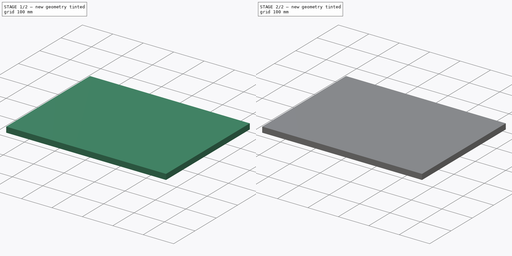
[diagram: build sequence overview — one tinted view per stage of 2, left to right]
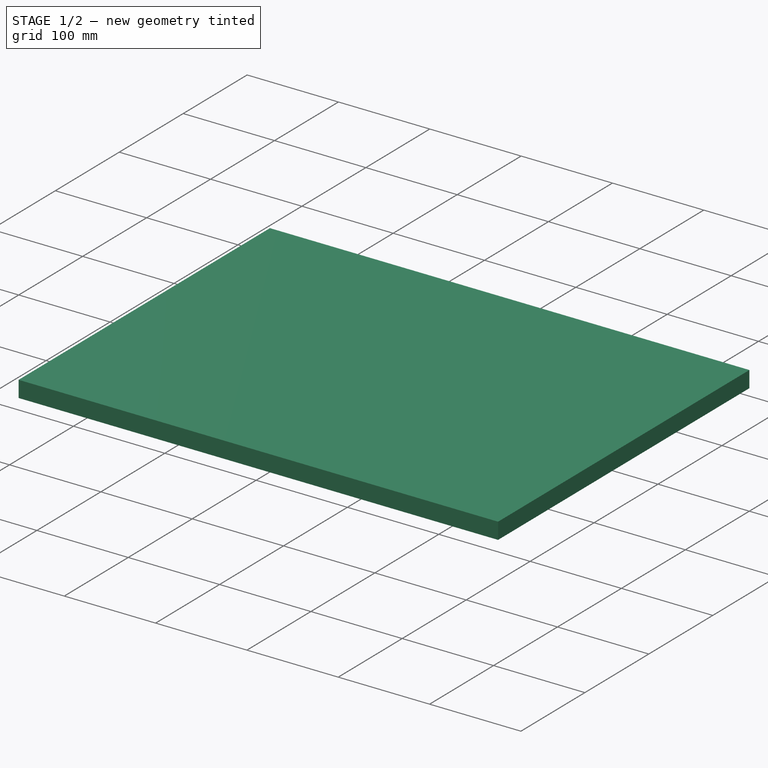
[diagram: stage 1 of 2 — iso view after this stage's code; geometry added in this stage tinted green]
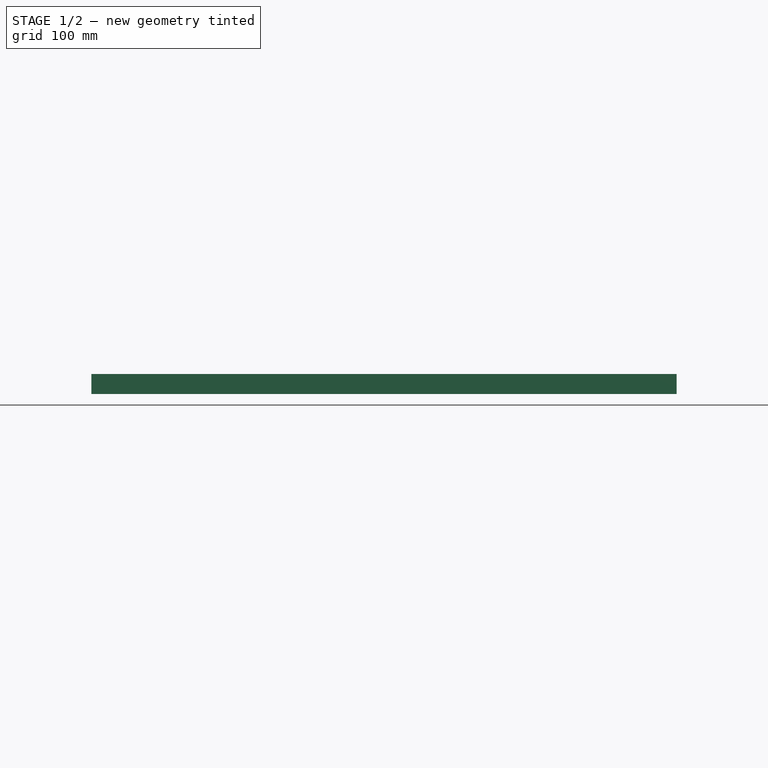
[diagram: stage 1 of 2 — front view after this stage's code; geometry added in this stage tinted green]
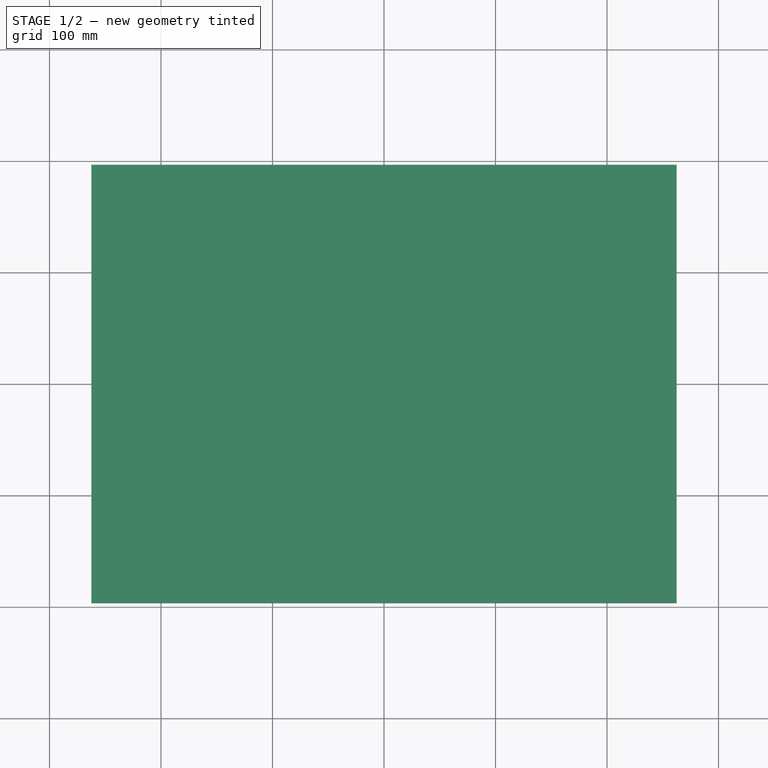
[diagram: stage 1 of 2 — top view after this stage's code; geometry added in this stage tinted green]
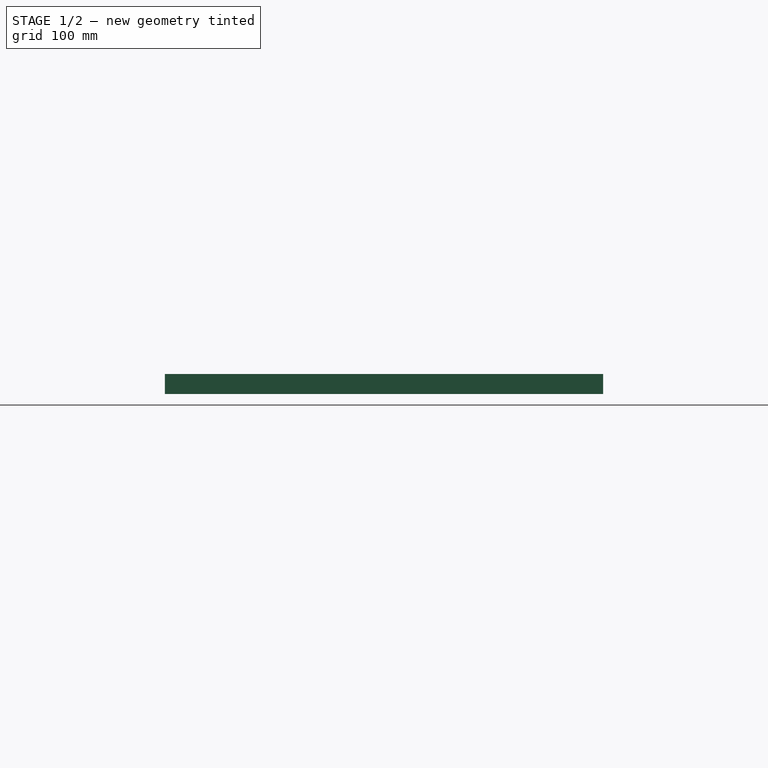
[diagram: stage 1 of 2 — right view after this stage's code; geometry added in this stage tinted green]
FCSTD DOCUMENT  (FreeCAD 1.0R39109 (Git))
Label: 71_drawer_box_top_bottom
License: All rights reserved
LicenseURL: http://en.wikipedia.org/wiki/All_rights_reserved
objects: Sketcher::SketchObject×2, Spreadsheet::Sheet×1, PartDesign::Pad×1, PartDesign::Pocket×1, PartDesign::Body×1
note: 11 computed .brp shape members not serialized (recipe doc carries the construction recipe); baked Part::Feature solids carry a one-line shape summary decoded from their .brp

FEATURE [Spreadsheet::Sheet] Spreadsheet
  cells = A2='length; B2(length)=525; A3='width; B3(width)=393; A4='height; B4(height)=18
FEATURE [Sketcher::SketchObject] Sketch
  ArcFitTolerance = 0
  AttachmentSupport = -> [XY_Plane]
  FullyConstrained = true
  MakeInternals = false
  MapMode = 5
  expr: Constraints[11] = Spreadsheet.length
  expr: Constraints[12] = Spreadsheet.width
  sketch-geometry (5):
    g0: LineSegment StartX=-262.5 StartY=196.5 StartZ=0 EndX=262.5 EndY=196.5 EndZ=0
    g1: LineSegment StartX=262.5 StartY=196.5 StartZ=0 EndX=262.5 EndY=-196.5 EndZ=0
    g2: LineSegment StartX=262.5 StartY=-196.5 StartZ=0 EndX=-262.5 EndY=-196.5 EndZ=0
    g3: LineSegment StartX=-262.5 StartY=-196.5 StartZ=0 EndX=-262.5 EndY=196.5 EndZ=0
    g4: LineSegment [constr] StartX=-262.5 StartY=196.5 StartZ=0 EndX=262.5 EndY=-196.5 EndZ=0
  constraints (13):
    c: Coincident(g0,g1)
    c: Coincident(g1,g2)
    c: Coincident(g2,g3)
    c: Coincident(g3,g0)
    c: Horizontal(g0)
    c: Horizontal(g2)
    c: Vertical(g1)
    c: Vertical(g3)
    c: Coincident(g4,g1)
    c: Coincident(g0,g4)
    c: Symmetric(g0,g1,g-1)
    c: Distance(g0,g0) = 525
    c: Distance(g0,g2) = 393
FEATURE [PartDesign::Pad] Pad
  Direction = (0,0,1)
  Length = 18
  Length2 = 10
  Profile = -> Sketch
  ReferenceAxis = -> Sketch [N_Axis]
  Suppressed = false
  Type = 0
  expr: Length = Spreadsheet.height
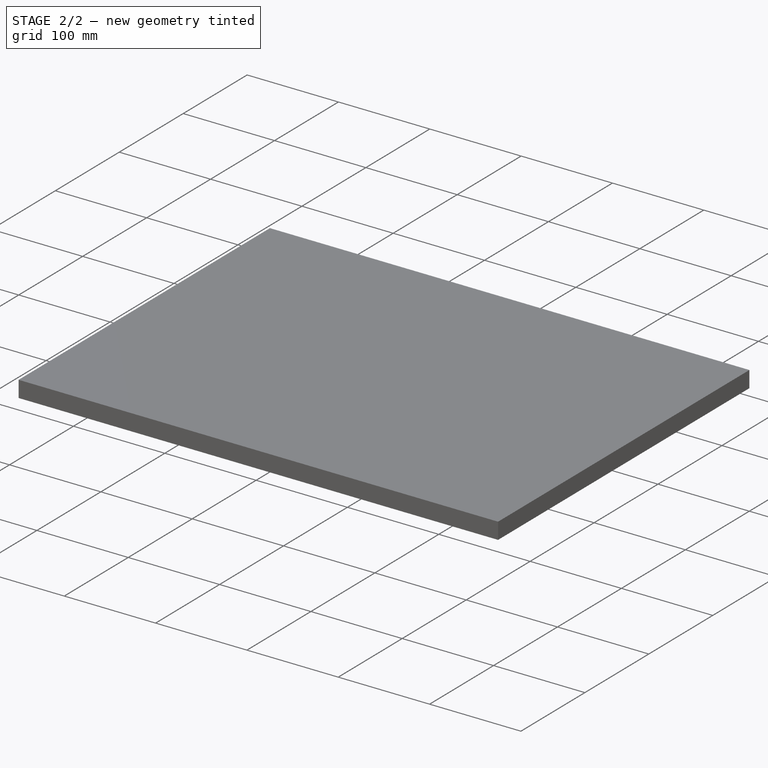
[diagram: stage 2 of 2 — iso view after this stage's code; geometry added in this stage tinted green]
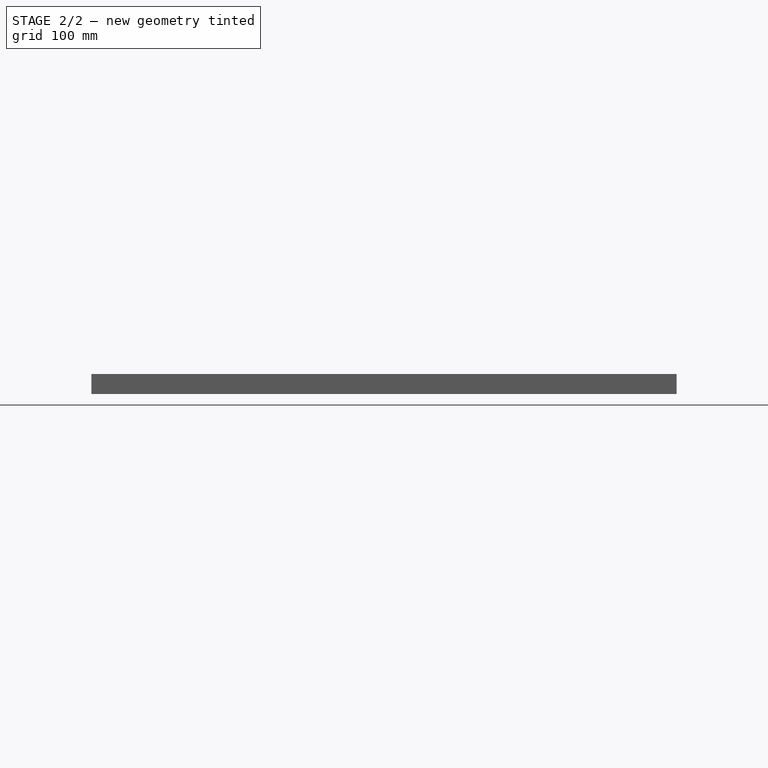
[diagram: stage 2 of 2 — front view after this stage's code; geometry added in this stage tinted green]
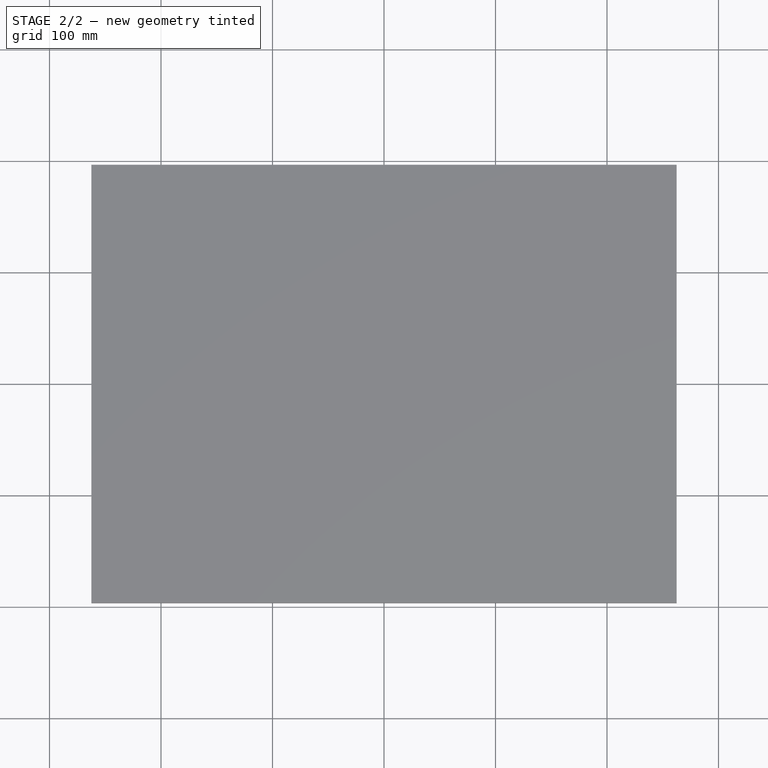
[diagram: stage 2 of 2 — top view after this stage's code; geometry added in this stage tinted green]
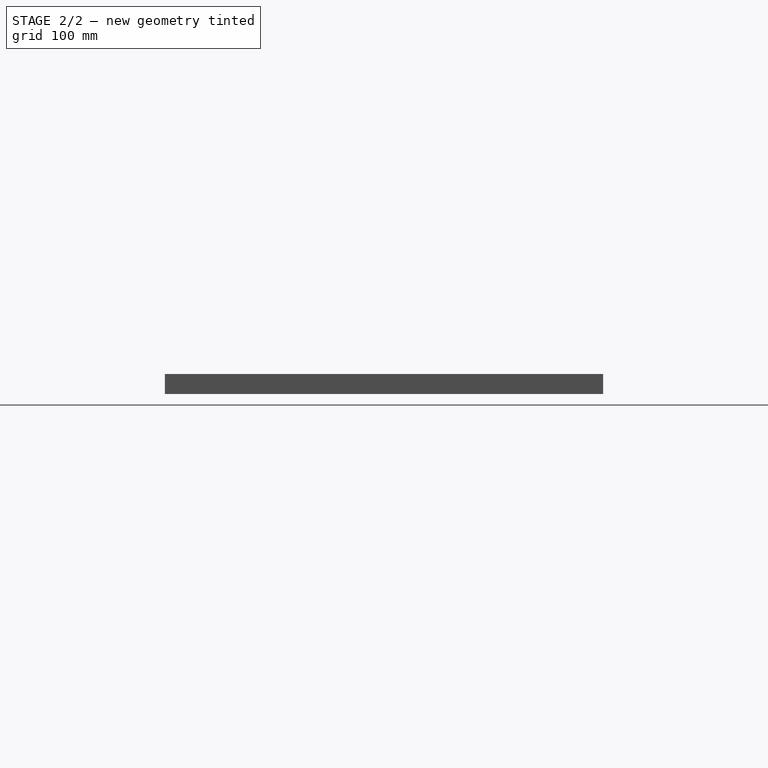
[diagram: stage 2 of 2 — right view after this stage's code; geometry added in this stage tinted green]
FEATURE [Sketcher::SketchObject] Sketch001
  ArcFitTolerance = 1e-06
  AttachmentSupport = -> [YZ_Plane]
  ExternalGeometry = -> [Pad]
  FullyConstrained = true
  MakeInternals = false
  MapMode = 5
  Placement = pos=(0,0,0) rot=(0.57735,0.57735,0.57735;2.0944rad)
  sketch-geometry (4):
    g0: LineSegment StartX=-190.5 StartY=0 StartZ=0 EndX=-184 EndY=0 EndZ=0
    g1: LineSegment StartX=-184 StartY=0 StartZ=0 EndX=-184 EndY=7 EndZ=0
    g2: LineSegment StartX=-184 StartY=7 StartZ=0 EndX=-190.5 EndY=7 EndZ=0
    g3: LineSegment StartX=-190.5 StartY=7 StartZ=0 EndX=-190.5 EndY=0 EndZ=0
  constraints (12):
    c: Coincident(g0,g1)
    c: Coincident(g1,g2)
    c: Coincident(g2,g3)
    c: Coincident(g3,g0)
    c: Horizontal(g0)
    c: Horizontal(g2)
    c: Vertical(g1)
    c: Vertical(g3)
    c: PointOnObject(g0,g-5)
    c: DistanceX(g2,g2) = 6.5
    c: DistanceY(g3,g3) = 7
    c: Distance(g3,g-4) = 6
FEATURE [PartDesign::Pocket] Pocket
  BaseFeature = -> Pad
  Direction = (-1,0,0)
  Length = 251.5
  Length2 = 251.5
  Profile = -> Sketch001
  ReferenceAxis = -> Sketch001 [N_Axis]
  Suppressed = false
  Type = 4
  expr: Length = Spreadsheet.length / 2 - 11
  expr: Length2 = Spreadsheet.length / 2 - 11
FEATURE [PartDesign::Body] Body
  AllowCompound = false
  Group = -> [Sketch,Pad,Sketch001,Pocket]
  Origin = -> Origin
  Tip = -> Pocket
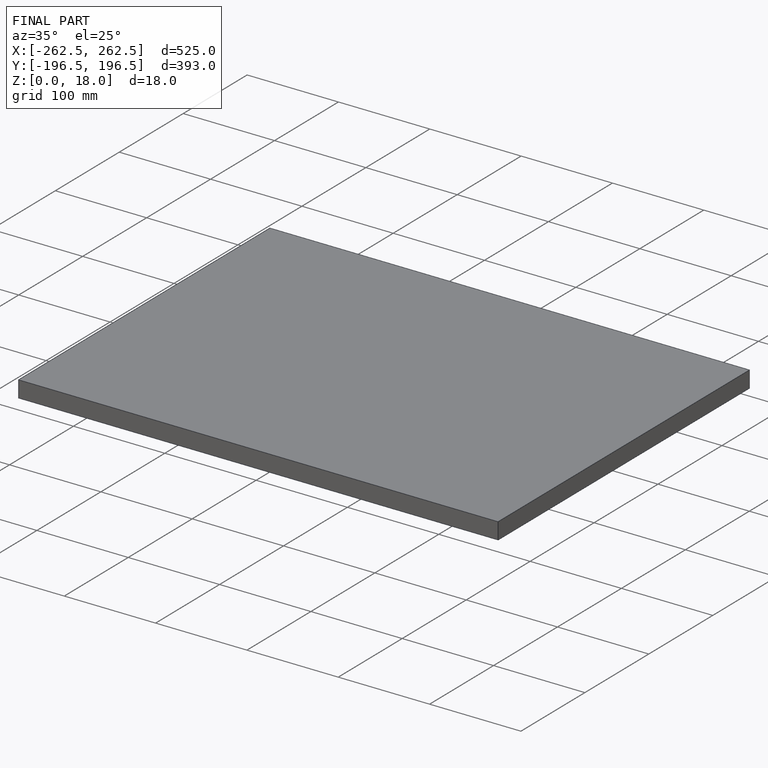
[diagram: finished part — iso view with bounding-box wireframe]
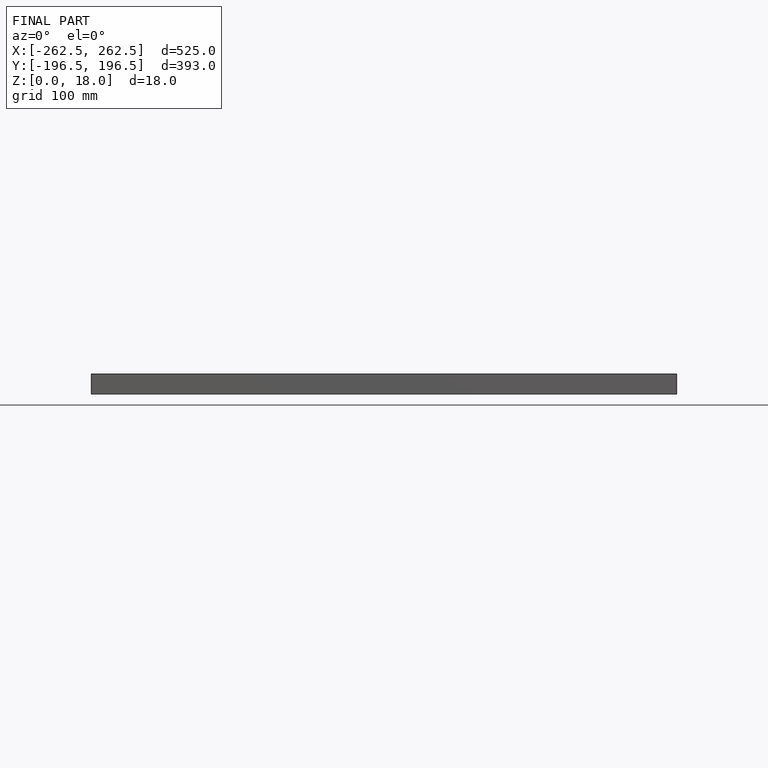
[diagram: finished part — front view with bounding-box wireframe]
